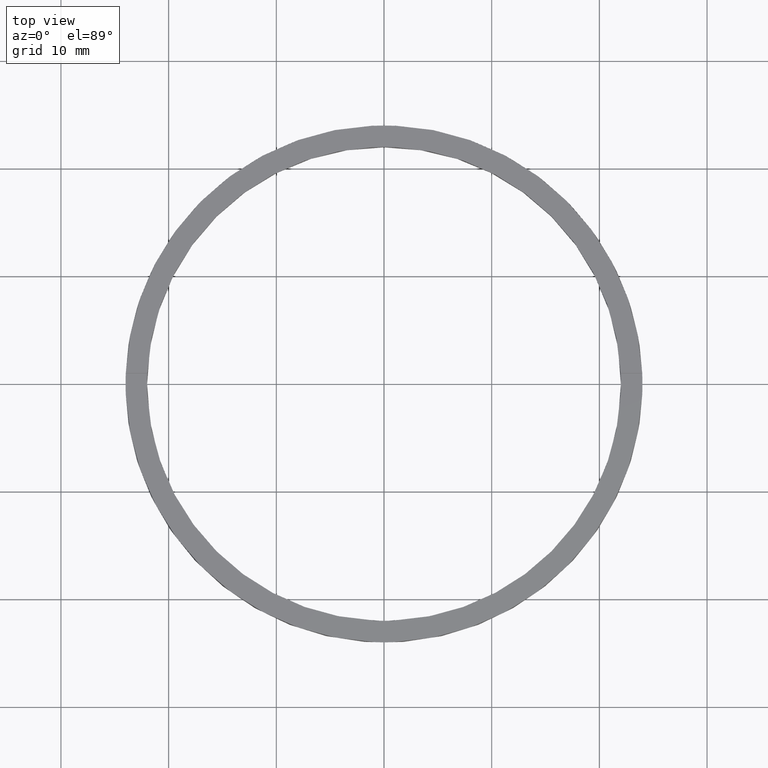
[diagram: clean part render]
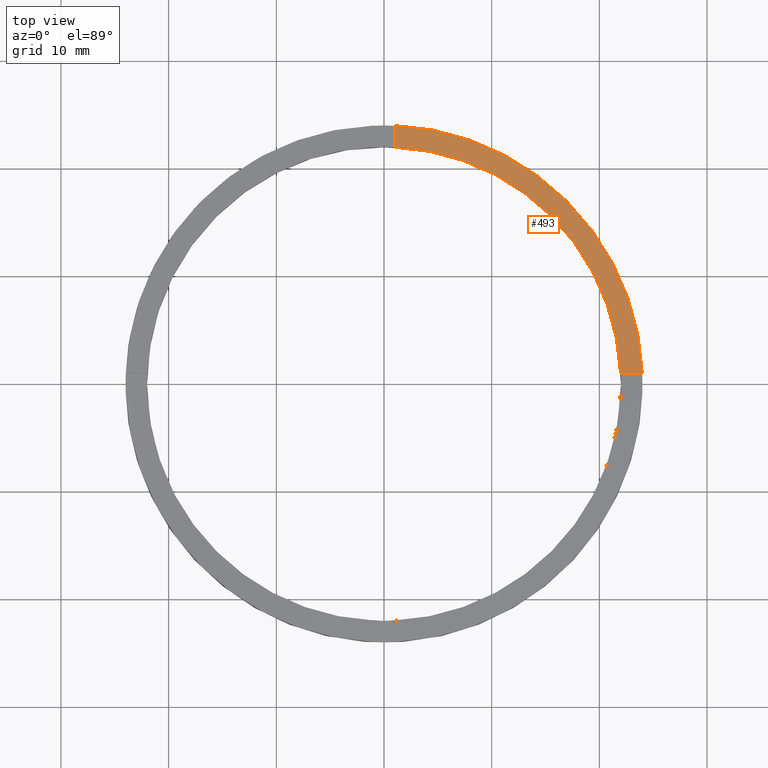
[diagram: same view with one face highlighted and labeled with its STEP entity id]
A machine part, top view. The second image highlights one B-rep face of the part: STEP entity #493.
In plain terms, the highlighted planar face has unit normal (0, 0, 1).
Its self-contained STEP definition (entity closure, byte-faithful):
#1 = EDGE_LOOP ( 'NONE', ( #268, #686, #16, #49 ) ) ;
#14 = AXIS2_PLACEMENT_3D ( 'NONE', #671, #727, #461 ) ;
#16 = ORIENTED_EDGE ( 'NONE', *, *, #201, .F. ) ;
#49 = ORIENTED_EDGE ( 'NONE', *, *, #163, .T. ) ;
#74 = DIRECTION ( 'NONE',  ( 0.000000000000000000, 0.000000000000000000, 1.000000000000000000 ) ) ;
#81 = CIRCLE ( 'NONE', #14, 24.00000000000000355 ) ;
#108 = FACE_OUTER_BOUND ( 'NONE', #1, .T. ) ;
#114 = VECTOR ( 'NONE', #246, 1000.000000000000000 ) ;
#123 = LINE ( 'NONE', #341, #114 ) ;
#155 = CARTESIAN_POINT ( 'NONE',  ( 0.9999999999999735767, 23.97915761656360090, 2.500000000000000000 ) ) ;
#163 = EDGE_CURVE ( 'NONE', #747, #552, #81, .T. ) ;
#169 = VERTEX_POINT ( 'NONE', #539 ) ;
#200 = CARTESIAN_POINT ( 'NONE',  ( 0.000000000000000000, 0.000000000000000000, 2.500000000000000000 ) ) ;
#201 = EDGE_CURVE ( 'NONE', #747, #668, #335, .T. ) ;
#246 = DIRECTION ( 'NONE',  ( 0.000000000000000000, 1.000000000000000000, 0.000000000000000000 ) ) ;
#268 = ORIENTED_EDGE ( 'NONE', *, *, #672, .F. ) ;
#298 = CARTESIAN_POINT ( 'NONE',  ( 0.000000000000000000, 0.000000000000000000, 2.500000000000000000 ) ) ;
#335 = LINE ( 'NONE', #543, #345 ) ;
#341 = CARTESIAN_POINT ( 'NONE',  ( 0.9999999999999740208, 14.00000000000000355, 2.500000000000000000 ) ) ;
#345 = VECTOR ( 'NONE', #630, 1000.000000000000000 ) ;
#377 = CARTESIAN_POINT ( 'NONE',  ( 23.97915761656361155, 0.9999999999998423483, 2.500000000000000000 ) ) ;
#400 = DIRECTION ( 'NONE',  ( 0.000000000000000000, 0.000000000000000000, 1.000000000000000000 ) ) ;
#461 = DIRECTION ( 'NONE',  ( 1.000000000000000000, 0.000000000000000000, 0.000000000000000000 ) ) ;
#493 = ADVANCED_FACE ( 'NONE', ( #108 ), #661, .T. ) ;
#496 = CIRCLE ( 'NONE', #510, 22.00000000000000000 ) ;
#510 = AXIS2_PLACEMENT_3D ( 'NONE', #298, #74, #729 ) ;
#539 = CARTESIAN_POINT ( 'NONE',  ( 0.9999999999999735767, 21.97726097583590743, 2.500000000000000000 ) ) ;
#543 = CARTESIAN_POINT ( 'NONE',  ( 13.99999999999999822, 0.9999999999998419042, 2.500000000000000000 ) ) ;
#552 = VERTEX_POINT ( 'NONE', #155 ) ;
#565 = CARTESIAN_POINT ( 'NONE',  ( 21.97726097583591809, 0.9999999999998421263, 2.500000000000000000 ) ) ;
#630 = DIRECTION ( 'NONE',  ( -1.000000000000000000, -4.336808689942017120E-17, -0.000000000000000000 ) ) ;
#661 = PLANE ( 'NONE',  #669 ) ;
#668 = VERTEX_POINT ( 'NONE', #565 ) ;
#669 = AXIS2_PLACEMENT_3D ( 'NONE', #200, #400, #753 ) ;
#671 = CARTESIAN_POINT ( 'NONE',  ( 0.000000000000000000, 0.000000000000000000, 2.500000000000000000 ) ) ;
#672 = EDGE_CURVE ( 'NONE', #169, #552, #123, .T. ) ;
#686 = ORIENTED_EDGE ( 'NONE', *, *, #731, .F. ) ;
#727 = DIRECTION ( 'NONE',  ( 0.000000000000000000, 0.000000000000000000, 1.000000000000000000 ) ) ;
#729 = DIRECTION ( 'NONE',  ( 1.000000000000000000, 0.000000000000000000, 0.000000000000000000 ) ) ;
#731 = EDGE_CURVE ( 'NONE', #668, #169, #496, .T. ) ;
#747 = VERTEX_POINT ( 'NONE', #377 ) ;
#753 = DIRECTION ( 'NONE',  ( 1.000000000000000000, 0.000000000000000000, -0.000000000000000000 ) ) ;